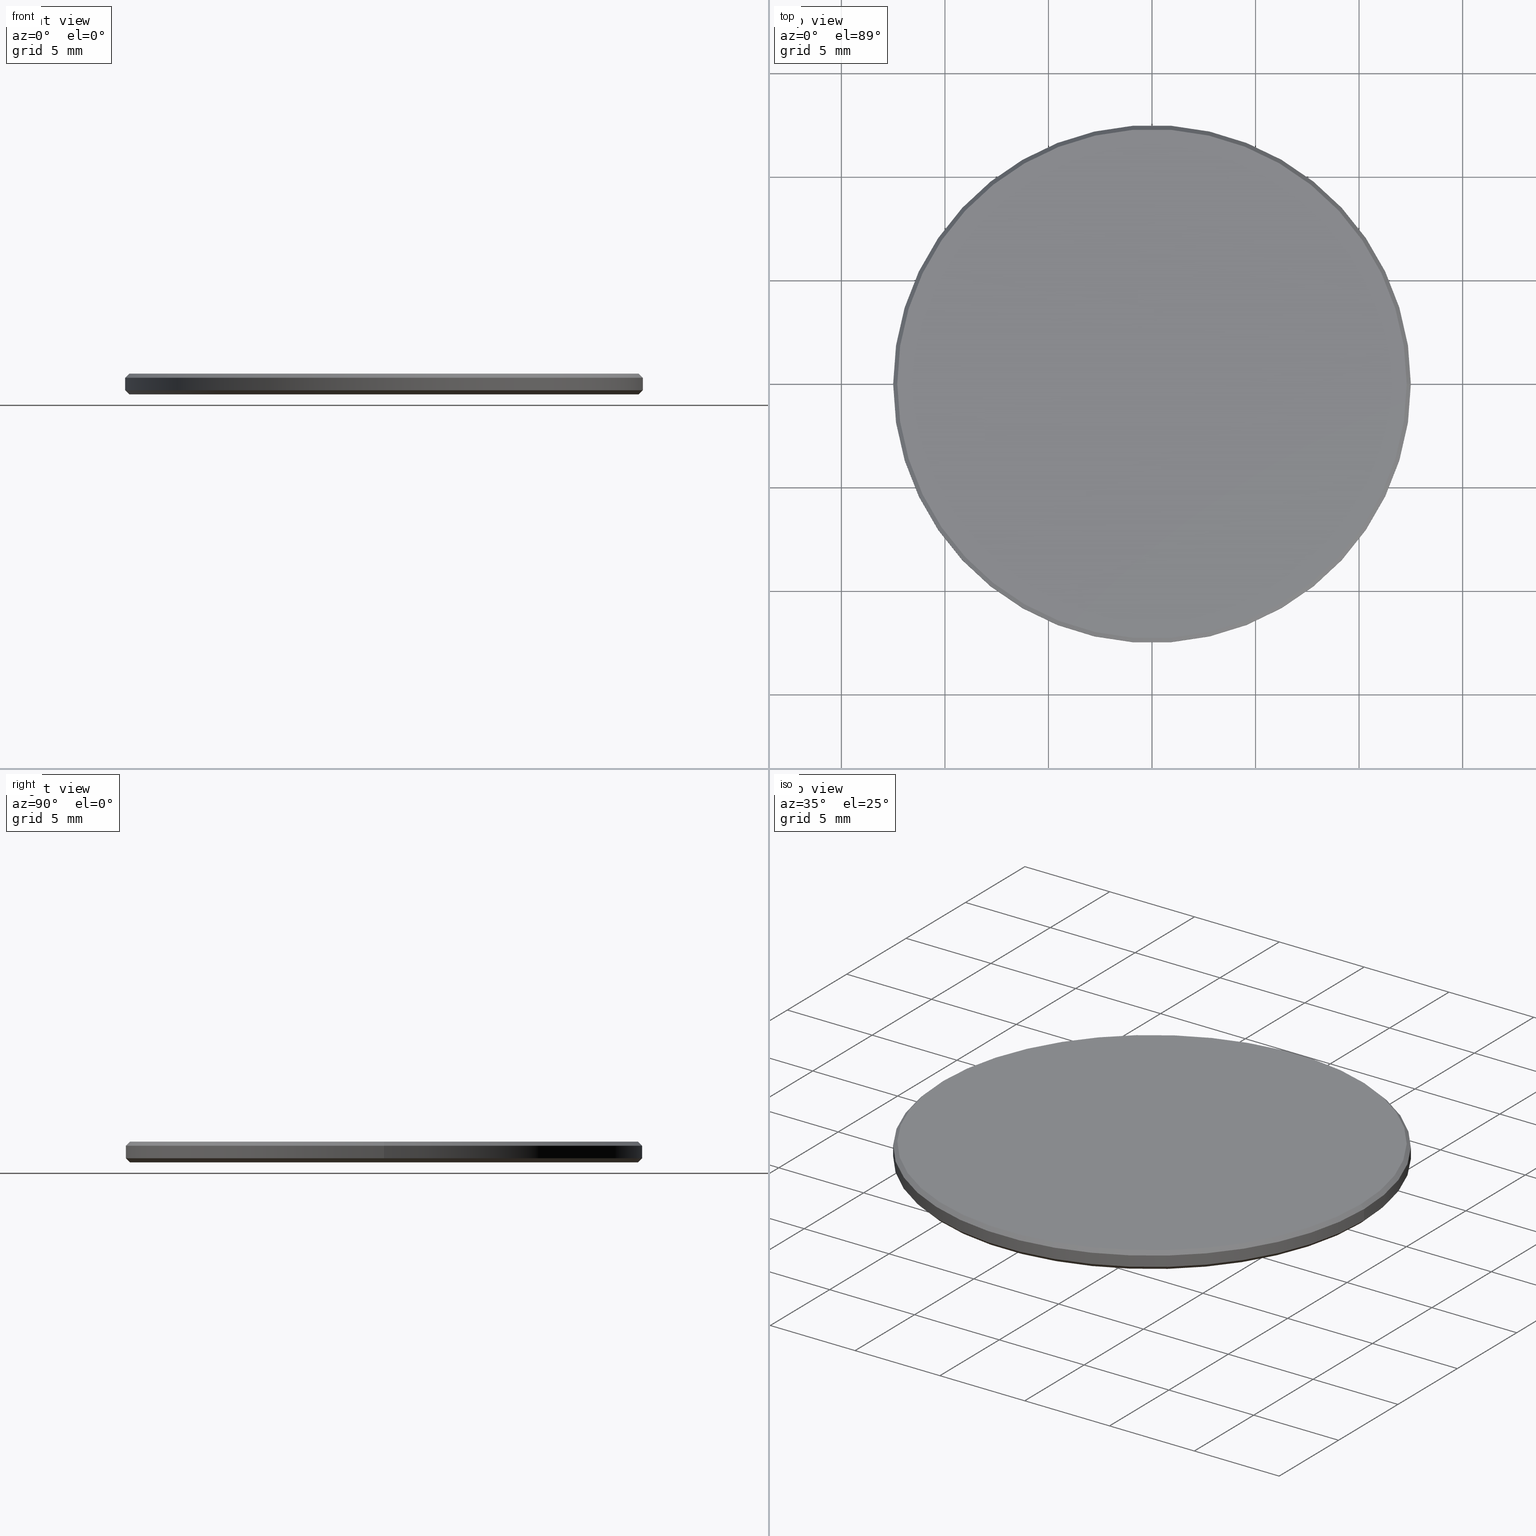
[diagram: canonical four-view strip — front | top / right | iso, engineering-drawing reading convention]
A machine part, canonical four-view strip (front | top / right | iso — engineering-drawing reading convention). The complete STEP part file that produces these views, byte-faithful:
ISO-10303-21;
HEADER;
FILE_DESCRIPTION (( 'STEP AP214' ),
    '1' );
FILE_NAME ('GNIF-320-7360-D25.STEP',
    '2024-07-19T14:28:38',
    ( '' ),
    ( '' ),
    'SwSTEP 2.0',
    'SolidWorks 2022',
    '' );
FILE_SCHEMA (( 'AUTOMOTIVE_DESIGN' ));
ENDSEC;

DATA;
#1 = ORIENTED_EDGE ( 'NONE', *, *, #210, .F. ) ;
#2 = EDGE_CURVE ( 'NONE', #25, #77, #10, .T. ) ;
#3 =( LENGTH_UNIT ( ) NAMED_UNIT ( * ) SI_UNIT ( .MILLI., .METRE. ) );
#4 = EDGE_LOOP ( 'NONE', ( #176, #21 ) ) ;
#5 = CONICAL_SURFACE ( 'NONE', #162, 12.50000000000000000, 0.7853981633974482790 ) ;
#6 = VERTEX_POINT ( 'NONE', #198 ) ;
#7 = DIRECTION ( 'NONE',  ( -0.000000000000000000, -0.000000000000000000, 1.000000000000000000 ) ) ;
#8 = ORIENTED_EDGE ( 'NONE', *, *, #192, .T. ) ;
#9 = AXIS2_PLACEMENT_3D ( 'NONE', #18, #52, #154 ) ;
#10 = LINE ( 'NONE', #67, #142 ) ;
#11 = PLANE ( 'NONE',  #224 ) ;
#12 = PRODUCT ( 'GNIF-320-7360-D25', 'GNIF-320-7360-D25', '', ( #79 ) ) ;
#13 = DIRECTION ( 'NONE',  ( 1.000000000000000000, 0.000000000000000000, 0.000000000000000000 ) ) ;
#14 = AXIS2_PLACEMENT_3D ( 'NONE', #49, #107, #231 ) ;
#15 = UNCERTAINTY_MEASURE_WITH_UNIT (LENGTH_MEASURE( 1.000000000000000082E-05 ), #57, 'distance_accuracy_value', 'NONE');
#16 = SURFACE_SIDE_STYLE ('',( #150 ) ) ;
#17 = CARTESIAN_POINT ( 'NONE',  ( 0.000000000000000000, 0.000000000000000000, 0.000000000000000000 ) ) ;
#18 = CARTESIAN_POINT ( 'NONE',  ( 0.000000000000000000, 0.000000000000000000, 0.1999999999999987899 ) ) ;
#19 = MECHANICAL_DESIGN_GEOMETRIC_PRESENTATION_REPRESENTATION (  '', ( #217 ), #237 ) ;
#20 = CARTESIAN_POINT ( 'NONE',  ( 0.000000000000000000, 0.000000000000000000, 0.000000000000000000 ) ) ;
#21 = ORIENTED_EDGE ( 'NONE', *, *, #206, .T. ) ;
#22 = ADVANCED_FACE ( 'NONE', ( #34 ), #195, .T. ) ;
#23 = SURFACE_SIDE_STYLE ('',( #208 ) ) ;
#24 = AXIS2_PLACEMENT_3D ( 'NONE', #20, #238, #51 ) ;
#25 = VERTEX_POINT ( 'NONE', #194 ) ;
#26 = DIRECTION ( 'NONE',  ( 1.000000000000000000, 0.000000000000000000, 0.000000000000000000 ) ) ;
#27 = CONICAL_SURFACE ( 'NONE', #58, 12.29999999999999893, 0.7853981633974612686 ) ;
#28 = FACE_OUTER_BOUND ( 'NONE', #136, .T. ) ;
#29 = DIRECTION ( 'NONE',  ( -0.000000000000000000, -0.000000000000000000, 1.000000000000000000 ) ) ;
#30 = ADVANCED_FACE ( 'NONE', ( #144 ), #115, .T. ) ;
#31 = EDGE_LOOP ( 'NONE', ( #188, #187, #62, #1 ) ) ;
#32 = CLOSED_SHELL ( 'NONE', ( #30, #84, #158, #120, #135, #127, #22, #39 ) ) ;
#33 = AXIS2_PLACEMENT_3D ( 'NONE', #169, #93, #13 ) ;
#34 = FACE_OUTER_BOUND ( 'NONE', #137, .T. ) ;
#35 = LINE ( 'NONE', #219, #212 ) ;
#36 = COLOUR_RGB ( '',1.000000000000000000, 1.000000000000000000, 1.000000000000000000 ) ;
#37 = DIRECTION ( 'NONE',  ( 0.7071067811865566766, 8.659560562355045024E-17, -0.7071067811865383579 ) ) ;
#38 =( NAMED_UNIT ( * ) SI_UNIT ( $, .STERADIAN. ) SOLID_ANGLE_UNIT ( ) );
#39 = ADVANCED_FACE ( 'NONE', ( #233 ), #5, .T. ) ;
#40 = DIRECTION ( 'NONE',  ( -1.000000000000000000, 0.000000000000000000, 0.000000000000000000 ) ) ;
#41 = PRODUCT_DEFINITION_FORMATION_WITH_SPECIFIED_SOURCE ( '�κ�', '', #12, .NOT_KNOWN. ) ;
#42 = EDGE_CURVE ( 'NONE', #25, #230, #64, .T. ) ;
#43 = ORIENTED_EDGE ( 'NONE', *, *, #2, .T. ) ;
#44 = VECTOR ( 'NONE', #131, 1000.000000000000114 ) ;
#45 = FILL_AREA_STYLE ('',( #119 ) ) ;
#46 = EDGE_LOOP ( 'NONE', ( #47, #159 ) ) ;
#47 = ORIENTED_EDGE ( 'NONE', *, *, #232, .T. ) ;
#48 = ORIENTED_EDGE ( 'NONE', *, *, #197, .T. ) ;
#49 = CARTESIAN_POINT ( 'NONE',  ( 0.000000000000000000, 0.000000000000000000, 0.8000000000000029310 ) ) ;
#50 = DIRECTION ( 'NONE',  ( -1.000000000000000000, 0.000000000000000000, 0.000000000000000000 ) ) ;
#51 = DIRECTION ( 'NONE',  ( 1.000000000000000000, 0.000000000000000000, 0.000000000000000000 ) ) ;
#52 = DIRECTION ( 'NONE',  ( -0.000000000000000000, -0.000000000000000000, 1.000000000000000000 ) ) ;
#53 = CARTESIAN_POINT ( 'NONE',  ( 0.000000000000000000, 0.000000000000000000, 1.000000000000000000 ) ) ;
#54 = AXIS2_PLACEMENT_3D ( 'NONE', #102, #196, #214 ) ;
#55 = CIRCLE ( 'NONE', #121, 12.30000000000000249 ) ;
#56 = DIRECTION ( 'NONE',  ( -0.000000000000000000, -0.000000000000000000, -1.000000000000000000 ) ) ;
#57 =( LENGTH_UNIT ( ) NAMED_UNIT ( * ) SI_UNIT ( .MILLI., .METRE. ) );
#58 = AXIS2_PLACEMENT_3D ( 'NONE', #85, #157, #215 ) ;
#59 = ORIENTED_EDGE ( 'NONE', *, *, #210, .T. ) ;
#60 =( NAMED_UNIT ( * ) SI_UNIT ( $, .STERADIAN. ) SOLID_ANGLE_UNIT ( ) );
#61 = CIRCLE ( 'NONE', #33, 12.50000000000000000 ) ;
#62 = ORIENTED_EDGE ( 'NONE', *, *, #201, .T. ) ;
#63 = EDGE_CURVE ( 'NONE', #156, #6, #172, .T. ) ;
#64 = CIRCLE ( 'NONE', #14, 12.50000000000000000 ) ;
#65 = EDGE_LOOP ( 'NONE', ( #87, #146, #101, #199 ) ) ;
#66 = AXIS2_PLACEMENT_3D ( 'NONE', #75, #149, #92 ) ;
#67 = CARTESIAN_POINT ( 'NONE',  ( -12.50000000000000000, 0.000000000000000000, 1.000000000000000000 ) ) ;
#68 = DIRECTION ( 'NONE',  ( 1.000000000000000000, 0.000000000000000000, 0.000000000000000000 ) ) ;
#69 = VERTEX_POINT ( 'NONE', #178 ) ;
#70 = ADVANCED_BREP_SHAPE_REPRESENTATION ( 'GNIF-320-7360-D25', ( #141, #81 ), #129 ) ;
#71 = SURFACE_STYLE_USAGE ( .BOTH. , #16 ) ;
#72 = DIRECTION ( 'NONE',  ( -0.000000000000000000, -0.000000000000000000, -1.000000000000000000 ) ) ;
#73 = DIRECTION ( 'NONE',  ( 0.000000000000000000, 0.000000000000000000, 1.000000000000000000 ) ) ;
#74 = EDGE_CURVE ( 'NONE', #230, #25, #86, .T. ) ;
#75 = CARTESIAN_POINT ( 'NONE',  ( 0.000000000000000000, 0.000000000000000000, 1.000000000000000000 ) ) ;
#76 = ORIENTED_EDGE ( 'NONE', *, *, #232, .F. ) ;
#77 = VERTEX_POINT ( 'NONE', #145 ) ;
#78 = APPLICATION_PROTOCOL_DEFINITION ( 'draft international standard', 'automotive_design', 1998, #98 ) ;
#79 = PRODUCT_CONTEXT ( 'NONE', #98, 'mechanical' ) ;
#80 = AXIS2_PLACEMENT_3D ( 'NONE', #126, #89, #160 ) ;
#81 = AXIS2_PLACEMENT_3D ( 'NONE', #100, #97, #190 ) ;
#82 = ORIENTED_EDGE ( 'NONE', *, *, #216, .F. ) ;
#83 = ORIENTED_EDGE ( 'NONE', *, *, #74, .F. ) ;
#84 = ADVANCED_FACE ( 'NONE', ( #28 ), #27, .T. ) ;
#85 = CARTESIAN_POINT ( 'NONE',  ( 0.000000000000000000, 0.000000000000000000, 1.000000000000000000 ) ) ;
#86 = CIRCLE ( 'NONE', #80, 12.50000000000000000 ) ;
#87 = ORIENTED_EDGE ( 'NONE', *, *, #42, .T. ) ;
#88 = CIRCLE ( 'NONE', #24, 12.30000000000000249 ) ;
#89 = DIRECTION ( 'NONE',  ( 0.000000000000000000, 0.000000000000000000, -1.000000000000000000 ) ) ;
#90 = ORIENTED_EDGE ( 'NONE', *, *, #197, .F. ) ;
#91 = FILL_AREA_STYLE_COLOUR ( '', #138 ) ;
#92 = DIRECTION ( 'NONE',  ( 1.000000000000000000, 0.000000000000000000, -0.000000000000000000 ) ) ;
#93 = DIRECTION ( 'NONE',  ( -0.000000000000000000, -0.000000000000000000, 1.000000000000000000 ) ) ;
#94 = VECTOR ( 'NONE', #205, 1000.000000000000114 ) ;
#95 = DIRECTION ( 'NONE',  ( -0.7071067811865566766, 0.000000000000000000, -0.7071067811865383579 ) ) ;
#96 = ORIENTED_EDGE ( 'NONE', *, *, #216, .T. ) ;
#97 = DIRECTION ( 'NONE',  ( 0.000000000000000000, 0.000000000000000000, 1.000000000000000000 ) ) ;
#98 = APPLICATION_CONTEXT ( 'automotive_design' ) ;
#99 = APPLICATION_PROTOCOL_DEFINITION ( 'draft international standard', 'automotive_design', 1998, #114 ) ;
#100 = CARTESIAN_POINT ( 'NONE',  ( 0.000000000000000000, 0.000000000000000000, 0.000000000000000000 ) ) ;
#101 = ORIENTED_EDGE ( 'NONE', *, *, #240, .T. ) ;
#102 = CARTESIAN_POINT ( 'NONE',  ( 0.000000000000000000, 0.000000000000000000, 1.000000000000000000 ) ) ;
#103 = DIRECTION ( 'NONE',  ( -0.000000000000000000, -0.000000000000000000, -1.000000000000000000 ) ) ;
#104 = ORIENTED_EDGE ( 'NONE', *, *, #42, .F. ) ;
#105 = EDGE_LOOP ( 'NONE', ( #228, #8, #226, #191 ) ) ;
#106 = PRESENTATION_LAYER_ASSIGNMENT (  '', '', ( #217 ) ) ;
#107 = DIRECTION ( 'NONE',  ( 0.000000000000000000, 0.000000000000000000, -1.000000000000000000 ) ) ;
#108 = PRODUCT_DEFINITION_SHAPE ( 'NONE', 'NONE',  #225 ) ;
#109 = CYLINDRICAL_SURFACE ( 'NONE', #155, 12.50000000000000000 ) ;
#110 = LINE ( 'NONE', #180, #44 ) ;
#111 = LINE ( 'NONE', #183, #94 ) ;
#112 = FILL_AREA_STYLE ('',( #91 ) ) ;
#113 = LINE ( 'NONE', #204, #147 ) ;
#114 = APPLICATION_CONTEXT ( 'automotive_design' ) ;
#115 = CONICAL_SURFACE ( 'NONE', #167, 12.50000000000000000, 0.7853981633974482790 ) ;
#116 = VECTOR ( 'NONE', #72, 1000.000000000000000 ) ;
#117 = UNCERTAINTY_MEASURE_WITH_UNIT (LENGTH_MEASURE( 1.000000000000000082E-05 ), #3, 'distance_accuracy_value', 'NONE');
#118 =( NAMED_UNIT ( * ) PLANE_ANGLE_UNIT ( ) SI_UNIT ( $, .RADIAN. ) );
#119 = FILL_AREA_STYLE_COLOUR ( '', #36 ) ;
#120 = ADVANCED_FACE ( 'NONE', ( #125 ), #143, .T. ) ;
#121 = AXIS2_PLACEMENT_3D ( 'NONE', #17, #207, #186 ) ;
#122 = PRESENTATION_STYLE_ASSIGNMENT (( #139 ) ) ;
#123 = DIRECTION ( 'NONE',  ( 0.000000000000000000, 0.000000000000000000, -1.000000000000000000 ) ) ;
#124 = CARTESIAN_POINT ( 'NONE',  ( 0.000000000000000000, 0.000000000000000000, 0.1999999999999987899 ) ) ;
#125 = FACE_OUTER_BOUND ( 'NONE', #170, .T. ) ;
#126 = CARTESIAN_POINT ( 'NONE',  ( 0.000000000000000000, 0.000000000000000000, 0.8000000000000029310 ) ) ;
#127 = ADVANCED_FACE ( 'NONE', ( #200 ), #11, .F. ) ;
#128 = ORIENTED_EDGE ( 'NONE', *, *, #74, .T. ) ;
#129 =( GEOMETRIC_REPRESENTATION_CONTEXT ( 3 ) GLOBAL_UNCERTAINTY_ASSIGNED_CONTEXT ( ( #15 ) ) GLOBAL_UNIT_ASSIGNED_CONTEXT ( ( #57, #134, #193 ) ) REPRESENTATION_CONTEXT ( 'NONE', 'WORKASPACE' ) );
#130 = CARTESIAN_POINT ( 'NONE',  ( 12.30000000000000249, 0.000000000000000000, 0.000000000000000000 ) ) ;
#131 = DIRECTION ( 'NONE',  ( -0.7071067811865474617, 8.659560562354932858E-17, 0.7071067811865474617 ) ) ;
#132 = EDGE_CURVE ( 'NONE', #230, #140, #239, .T. ) ;
#133 = PRESENTATION_STYLE_ASSIGNMENT (( #71 ) ) ;
#134 =( NAMED_UNIT ( * ) PLANE_ANGLE_UNIT ( ) SI_UNIT ( $, .RADIAN. ) );
#135 = ADVANCED_FACE ( 'NONE', ( #148 ), #235, .T. ) ;
#136 = EDGE_LOOP ( 'NONE', ( #174, #48, #104, #82 ) ) ;
#137 = EDGE_LOOP ( 'NONE', ( #90, #76, #96, #83 ) ) ;
#138 = COLOUR_RGB ( '',1.000000000000000000, 1.000000000000000000, 1.000000000000000000 ) ;
#139 = SURFACE_STYLE_USAGE ( .BOTH. , #23 ) ;
#140 = VERTEX_POINT ( 'NONE', #164 ) ;
#141 = MANIFOLD_SOLID_BREP ( '����1', #32 ) ;
#142 = VECTOR ( 'NONE', #103, 1000.000000000000000 ) ;
#143 = CYLINDRICAL_SURFACE ( 'NONE', #181, 12.50000000000000000 ) ;
#144 = FACE_OUTER_BOUND ( 'NONE', #105, .T. ) ;
#145 = CARTESIAN_POINT ( 'NONE',  ( -12.50000000000000000, 0.000000000000000000, 0.1999999999999987899 ) ) ;
#146 = ORIENTED_EDGE ( 'NONE', *, *, #132, .T. ) ;
#147 = VECTOR ( 'NONE', #37, 1000.000000000000000 ) ;
#148 = FACE_OUTER_BOUND ( 'NONE', #46, .T. ) ;
#149 = DIRECTION ( 'NONE',  ( 0.000000000000000000, 0.000000000000000000, 1.000000000000000000 ) ) ;
#150 = SURFACE_STYLE_FILL_AREA ( #112 ) ;
#151 =( NAMED_UNIT ( * ) PLANE_ANGLE_UNIT ( ) SI_UNIT ( $, .RADIAN. ) );
#152 =( LENGTH_UNIT ( ) NAMED_UNIT ( * ) SI_UNIT ( .MILLI., .METRE. ) );
#153 = EDGE_CURVE ( 'NONE', #227, #69, #88, .T. ) ;
#154 = DIRECTION ( 'NONE',  ( 1.000000000000000000, 0.000000000000000000, 0.000000000000000000 ) ) ;
#155 = AXIS2_PLACEMENT_3D ( 'NONE', #53, #56, #40 ) ;
#156 = VERTEX_POINT ( 'NONE', #220 ) ;
#157 = DIRECTION ( 'NONE',  ( 0.000000000000000000, 0.000000000000000000, -1.000000000000000000 ) ) ;
#158 = ADVANCED_FACE ( 'NONE', ( #184 ), #109, .T. ) ;
#159 = ORIENTED_EDGE ( 'NONE', *, *, #63, .T. ) ;
#160 = DIRECTION ( 'NONE',  ( 1.000000000000000000, 0.000000000000000000, 0.000000000000000000 ) ) ;
#161 = ORIENTED_EDGE ( 'NONE', *, *, #132, .F. ) ;
#162 = AXIS2_PLACEMENT_3D ( 'NONE', #124, #29, #68 ) ;
#163 = CARTESIAN_POINT ( 'NONE',  ( 0.000000000000000000, 0.000000000000000000, 0.000000000000000000 ) ) ;
#164 = CARTESIAN_POINT ( 'NONE',  ( 12.50000000000000000, 1.530808498934191521E-15, 0.1999999999999987899 ) ) ;
#165 = CARTESIAN_POINT ( 'NONE',  ( 12.50000000000000000, 1.530808498934191521E-15, 0.8000000000000029310 ) ) ;
#166 = DIRECTION ( 'NONE',  ( 1.000000000000000000, 0.000000000000000000, -0.000000000000000000 ) ) ;
#167 = AXIS2_PLACEMENT_3D ( 'NONE', #175, #7, #26 ) ;
#168 = STYLED_ITEM ( 'NONE', ( #133 ), #141 ) ;
#169 = CARTESIAN_POINT ( 'NONE',  ( 0.000000000000000000, 0.000000000000000000, 0.1999999999999987899 ) ) ;
#170 = EDGE_LOOP ( 'NONE', ( #161, #128, #43, #59 ) ) ;
#171 = SHAPE_DEFINITION_REPRESENTATION ( #108, #70 ) ;
#172 = CIRCLE ( 'NONE', #54, 12.29999999999999893 ) ;
#173 = CIRCLE ( 'NONE', #209, 12.29999999999999893 ) ;
#174 = ORIENTED_EDGE ( 'NONE', *, *, #63, .F. ) ;
#175 = CARTESIAN_POINT ( 'NONE',  ( 0.000000000000000000, 0.000000000000000000, 0.1999999999999987899 ) ) ;
#176 = ORIENTED_EDGE ( 'NONE', *, *, #153, .T. ) ;
#177 = AXIS2_PLACEMENT_3D ( 'NONE', #218, #123, #211 ) ;
#178 = CARTESIAN_POINT ( 'NONE',  ( -12.30000000000000249, 1.518562030942718164E-15, 0.000000000000000000 ) ) ;
#179 = CARTESIAN_POINT ( 'NONE',  ( 0.000000000000000000, 0.000000000000000000, 1.000000000000000000 ) ) ;
#180 = CARTESIAN_POINT ( 'NONE',  ( -12.50000000000000000, 1.530808498934191521E-15, 0.1999999999999987899 ) ) ;
#181 = AXIS2_PLACEMENT_3D ( 'NONE', #179, #213, #50 ) ;
#182 = PRESENTATION_LAYER_ASSIGNMENT (  '', '', ( #168 ) ) ;
#183 = CARTESIAN_POINT ( 'NONE',  ( 12.50000000000000000, 0.000000000000000000, 0.1999999999999987899 ) ) ;
#184 = FACE_OUTER_BOUND ( 'NONE', #65, .T. ) ;
#185 = PRODUCT_RELATED_PRODUCT_CATEGORY ( 'part', '', ( #12 ) ) ;
#186 = DIRECTION ( 'NONE',  ( 1.000000000000000000, 0.000000000000000000, 0.000000000000000000 ) ) ;
#187 = ORIENTED_EDGE ( 'NONE', *, *, #153, .F. ) ;
#188 = ORIENTED_EDGE ( 'NONE', *, *, #192, .F. ) ;
#189 = MECHANICAL_DESIGN_GEOMETRIC_PRESENTATION_REPRESENTATION (  '', ( #168 ), #229 ) ;
#190 = DIRECTION ( 'NONE',  ( 1.000000000000000000, 0.000000000000000000, 0.000000000000000000 ) ) ;
#191 = ORIENTED_EDGE ( 'NONE', *, *, #201, .F. ) ;
#192 = EDGE_CURVE ( 'NONE', #69, #77, #110, .T. ) ;
#193 =( NAMED_UNIT ( * ) SI_UNIT ( $, .STERADIAN. ) SOLID_ANGLE_UNIT ( ) );
#194 = CARTESIAN_POINT ( 'NONE',  ( -12.50000000000000000, 0.000000000000000000, 0.8000000000000029310 ) ) ;
#195 = CONICAL_SURFACE ( 'NONE', #177, 12.29999999999999893, 0.7853981633974612686 ) ;
#196 = DIRECTION ( 'NONE',  ( 0.000000000000000000, 0.000000000000000000, 1.000000000000000000 ) ) ;
#197 = EDGE_CURVE ( 'NONE', #156, #230, #113, .T. ) ;
#198 = CARTESIAN_POINT ( 'NONE',  ( -12.29999999999999893, 0.000000000000000000, 1.000000000000000000 ) ) ;
#199 = ORIENTED_EDGE ( 'NONE', *, *, #2, .F. ) ;
#200 = FACE_OUTER_BOUND ( 'NONE', #4, .T. ) ;
#201 = EDGE_CURVE ( 'NONE', #227, #140, #111, .T. ) ;
#202 = DIRECTION ( 'NONE',  ( 1.000000000000000000, 0.000000000000000000, 0.000000000000000000 ) ) ;
#203 = UNCERTAINTY_MEASURE_WITH_UNIT (LENGTH_MEASURE( 1.000000000000000082E-05 ), #152, 'distance_accuracy_value', 'NONE');
#204 = CARTESIAN_POINT ( 'NONE',  ( 12.29999999999999893, 1.506315562951244216E-15, 1.000000000000000000 ) ) ;
#205 = DIRECTION ( 'NONE',  ( 0.7071067811865474617, 0.000000000000000000, 0.7071067811865474617 ) ) ;
#206 = EDGE_CURVE ( 'NONE', #69, #227, #55, .T. ) ;
#207 = DIRECTION ( 'NONE',  ( -0.000000000000000000, -0.000000000000000000, -1.000000000000000000 ) ) ;
#208 = SURFACE_STYLE_FILL_AREA ( #45 ) ;
#209 = AXIS2_PLACEMENT_3D ( 'NONE', #236, #73, #202 ) ;
#210 = EDGE_CURVE ( 'NONE', #77, #140, #61, .T. ) ;
#211 = DIRECTION ( 'NONE',  ( -1.000000000000000000, 0.000000000000000000, 0.000000000000000000 ) ) ;
#212 = VECTOR ( 'NONE', #95, 1000.000000000000000 ) ;
#213 = DIRECTION ( 'NONE',  ( -0.000000000000000000, -0.000000000000000000, -1.000000000000000000 ) ) ;
#214 = DIRECTION ( 'NONE',  ( 1.000000000000000000, 0.000000000000000000, 0.000000000000000000 ) ) ;
#215 = DIRECTION ( 'NONE',  ( -1.000000000000000000, 0.000000000000000000, 0.000000000000000000 ) ) ;
#216 = EDGE_CURVE ( 'NONE', #6, #25, #35, .T. ) ;
#217 = STYLED_ITEM ( 'NONE', ( #122 ), #70 ) ;
#218 = CARTESIAN_POINT ( 'NONE',  ( 0.000000000000000000, 0.000000000000000000, 1.000000000000000000 ) ) ;
#219 = CARTESIAN_POINT ( 'NONE',  ( -12.29999999999999893, 0.000000000000000000, 1.000000000000000000 ) ) ;
#220 = CARTESIAN_POINT ( 'NONE',  ( 12.29999999999999893, 1.518562030942717967E-15, 1.000000000000000000 ) ) ;
#221 = CIRCLE ( 'NONE', #9, 12.50000000000000000 ) ;
#222 = CARTESIAN_POINT ( 'NONE',  ( 12.50000000000000000, 1.530808498934191521E-15, 1.000000000000000000 ) ) ;
#223 = PRODUCT_DEFINITION_CONTEXT ( 'detailed design', #114, 'design' ) ;
#224 = AXIS2_PLACEMENT_3D ( 'NONE', #163, #234, #166 ) ;
#225 = PRODUCT_DEFINITION ( 'δ֪', '', #41, #223 ) ;
#226 = ORIENTED_EDGE ( 'NONE', *, *, #240, .F. ) ;
#227 = VERTEX_POINT ( 'NONE', #130 ) ;
#228 = ORIENTED_EDGE ( 'NONE', *, *, #206, .F. ) ;
#229 =( GEOMETRIC_REPRESENTATION_CONTEXT ( 3 ) GLOBAL_UNCERTAINTY_ASSIGNED_CONTEXT ( ( #203 ) ) GLOBAL_UNIT_ASSIGNED_CONTEXT ( ( #152, #151, #38 ) ) REPRESENTATION_CONTEXT ( 'NONE', 'WORKASPACE' ) );
#230 = VERTEX_POINT ( 'NONE', #165 ) ;
#231 = DIRECTION ( 'NONE',  ( 1.000000000000000000, 0.000000000000000000, 0.000000000000000000 ) ) ;
#232 = EDGE_CURVE ( 'NONE', #6, #156, #173, .T. ) ;
#233 = FACE_OUTER_BOUND ( 'NONE', #31, .T. ) ;
#234 = DIRECTION ( 'NONE',  ( 0.000000000000000000, 0.000000000000000000, 1.000000000000000000 ) ) ;
#235 = PLANE ( 'NONE',  #66 ) ;
#236 = CARTESIAN_POINT ( 'NONE',  ( 0.000000000000000000, 0.000000000000000000, 1.000000000000000000 ) ) ;
#237 =( GEOMETRIC_REPRESENTATION_CONTEXT ( 3 ) GLOBAL_UNCERTAINTY_ASSIGNED_CONTEXT ( ( #117 ) ) GLOBAL_UNIT_ASSIGNED_CONTEXT ( ( #3, #118, #60 ) ) REPRESENTATION_CONTEXT ( 'NONE', 'WORKASPACE' ) );
#238 = DIRECTION ( 'NONE',  ( -0.000000000000000000, -0.000000000000000000, -1.000000000000000000 ) ) ;
#239 = LINE ( 'NONE', #222, #116 ) ;
#240 = EDGE_CURVE ( 'NONE', #140, #77, #221, .T. ) ;
ENDSEC;
END-ISO-10303-21;
